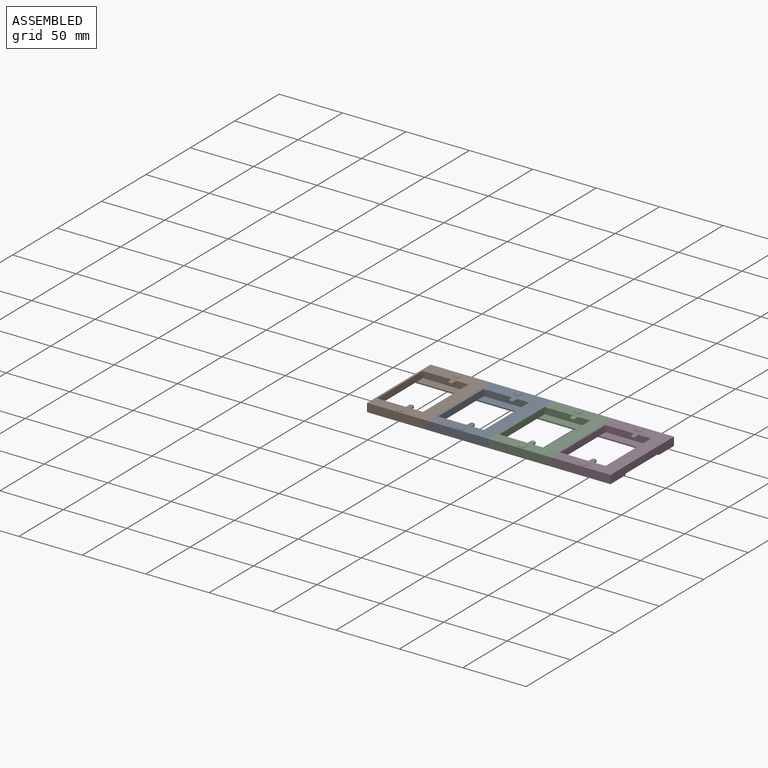
[diagram: assembled view]
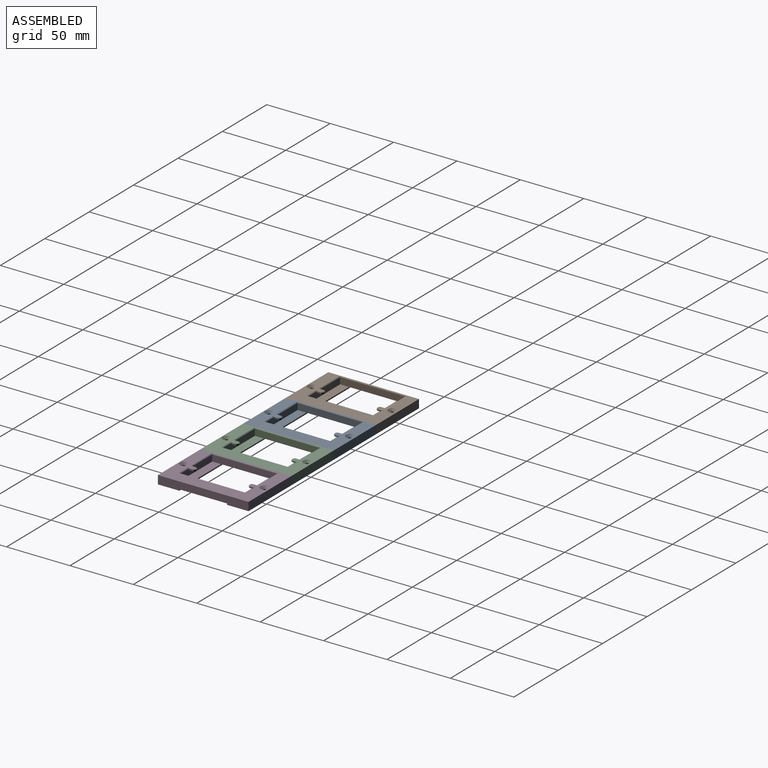
[diagram: assembled view, second angle]
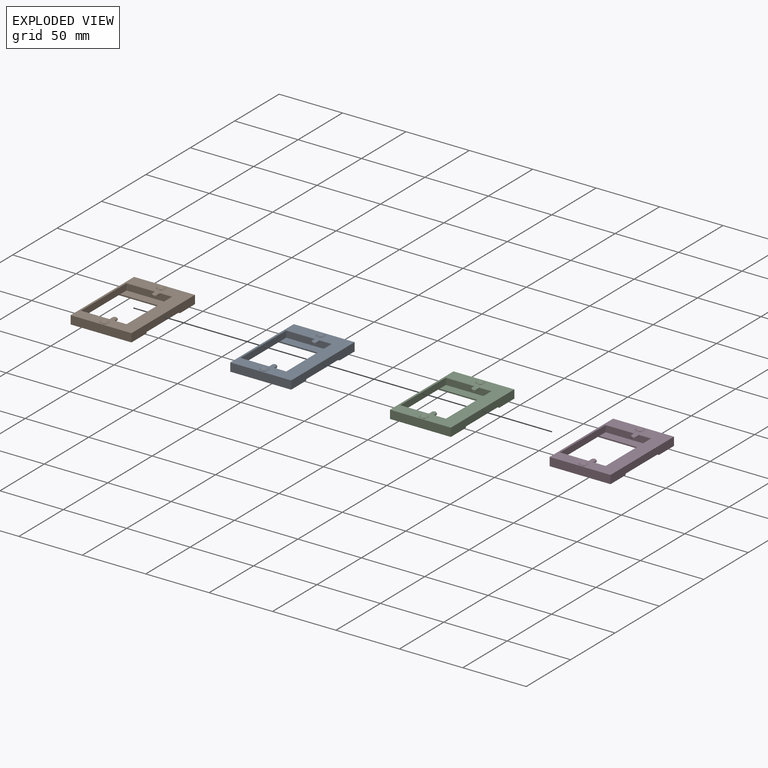
[diagram: exploded view]
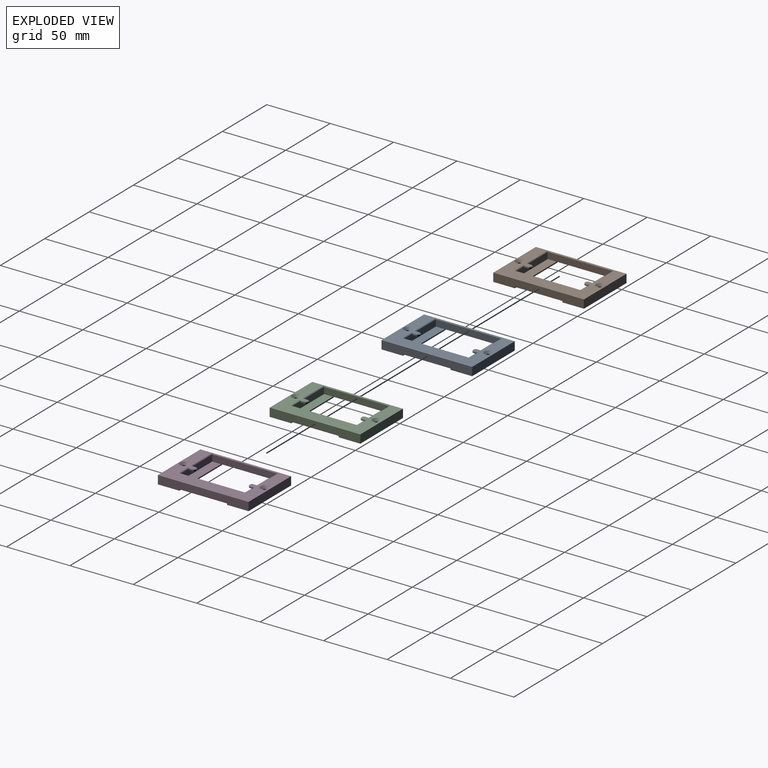
[diagram: exploded view, second angle]
ASSEMBLY  parts=4 mates=3
PART A: 46 faces, bbox 48x71.5x6.6 mm
  f0: plane 71.5x48mm, normal (0,0,1), area 1446.6mm2, adj f2,f3,f28,f29,f30,f31,f32,f33
  f1: plane 48x17mm, normal (0,0,-1), area 808mm2, adj f2,f3,f7,f40,f44
  f2: plane 71.5x6.6mm, normal (-1,0,0), area 434.4mm2, adj f0,f1,f4,f5,f6,f7,f40,f41
  f3: plane 71.5x6.6mm, normal (1,0,0), area 434.4mm2, adj f0,f1,f4,f6,f7,f8,f40,f41
  f4: plane 48x17mm, normal (0,0,-1), area 808mm2, adj f2,f3,f6,f41,f42
  f5: plane 37.5x1mm, normal (0,0,-1), area 37.5mm2, adj f2,f6,f7,f11
  f6: plane 48x1mm, normal (0,-1,0), area 48mm2, adj f2,f3,f4,f5,f8,f26
  f7: plane 48x1mm, normal (0,1,0), area 48mm2, adj f1,f2,f3,f5,f8,f27
  f8: plane 37.5x1mm, normal (0,0,-1), area 37.5mm2, adj f3,f6,f7,f22
  f9: plane 46x5.1mm, normal (0,1,0), area 221.2mm2, adj f10,f11,f17,f18,f20,f21,f22,f23
  f10: plane 51.5x0.2mm, normal (-1,0,0), area 10.3mm2, adj f9,f12,f25,f32
  f11: plane 51.5x5.1mm, normal (1,0,0), area 262.6mm2, adj f5,f9,f12,f26,f27,f35
  f12: plane 46x5.1mm, normal (0,-1,0), area 221.2mm2, adj f10,f11,f13,f15,f16,f21,f22,f24
  f13: plane 3x0.2mm, normal (-1,0,0), area 0.6mm2, adj f12,f14,f24,f31
  f14: cylinder r=2mm len=4mm, axis (0,0,1), area 5.3mm2, adj f13,f15,f16,f24,f29
  f15: plane 3x1mm, normal (1,0,0), area 3mm2, adj f12,f14,f16,f28
  f16: plane 5x3.2mm, normal (0,0,-1), area 15mm2, adj f12,f14,f15,f24
  f17: plane 3x0.2mm, normal (-1,0,0), area 0.6mm2, adj f9,f19,f23,f39
  f18: plane 3x1mm, normal (1,0,0), area 3mm2, adj f9,f19,f20,f36
  f19: cylinder r=2mm len=4mm, axis (0,0,1), area 5.3mm2, adj f17,f18,f20,f23,f38
  f20: plane 5x3.2mm, normal (0,0,-1), area 15mm2, adj f9,f18,f19,f23
  f21: plane 51.5x9.2mm, normal (0,0,-1), area 473.8mm2, adj f9,f12,f22,f25
  f22: plane 51.5x4.1mm, normal (-1,0,0), area 211.1mm2, adj f8,f9,f12,f21,f26,f27
  f23: plane 4.6x0.8mm, normal (-0.71,0,-0.71), area 4.7mm2, adj f9,f17,f19,f20
  f24: plane 4.6x0.8mm, normal (-0.71,0,-0.71), area 4.7mm2, adj f12,f13,f14,f16
  f25: plane 51.5x0.8mm, normal (-0.71,0,-0.71), area 58.3mm2, adj f9,f10,f12,f21
  f26: plane 46x7mm, normal (0,0,1), area 322mm2, adj f6,f11,f12,f22
  f27: plane 46x7mm, normal (0,0,1), area 322mm2, adj f7,f9,f11,f22
  f28: plane 3.5x0.5mm, normal (0.71,0,0.71), area 2.3mm2, adj f0,f15,f29,f30
  f29: cone r=1.5mm half-angle=45deg, axis (0,0,-1), area 3.9mm2, adj f0,f14,f28,f31
  f30: plane 10.5x0.5mm, normal (0,-0.71,0.71), area 7.1mm2, adj f0,f12,f28,f32
  f31: plane 3.5x0.5mm, normal (-0.71,0,0.71), area 2.3mm2, adj f0,f13,f29,f33
  f32: plane 52.5x0.5mm, normal (-0.71,0,0.71), area 36.8mm2, adj f0,f10,f30,f34
  f33: plane 23.5x0.5mm, normal (0,-0.71,0.71), area 16.3mm2, adj f0,f12,f31,f35
  f34: plane 10.5x0.5mm, normal (0,0.71,0.71), area 7.1mm2, adj f0,f9,f32,f36
  f35: plane 52.5x0.5mm, normal (0.71,0,0.71), area 36.8mm2, adj f0,f11,f33,f37
  f36: plane 3.5x0.5mm, normal (0.71,0,0.71), area 2.3mm2, adj f0,f18,f34,f38
  f37: plane 23.5x0.5mm, normal (0,0.71,0.71), area 16.3mm2, adj f0,f9,f35,f39
  f38: cone r=2mm half-angle=45deg, axis (0,0,-1), area 3.9mm2, adj f0,f19,f36,f39
  f39: plane 3.5x0.5mm, normal (-0.71,0,0.71), area 2.3mm2, adj f0,f17,f37,f38
  f40: plane 48x6.6mm, normal (0,-1,0), area 316.8mm2, adj f0,f1,f2,f3
  f41: plane 48x6.6mm, normal (0,1,0), area 316.8mm2, adj f0,f2,f3,f4
  f42: cylinder r=1.6mm len=4.84mm, axis (0,0,1), area 48.7mm2, adj f4,f43
  f43: cone r=1.6mm half-angle=45deg, axis (0,0,1), area 38.8mm2, adj f0,f42
  f44: cylinder r=1.6mm len=4.84mm, axis (0,0,1), area 48.7mm2, adj f1,f45
  f45: cone r=1.6mm half-angle=45deg, axis (0,0,1), area 38.8mm2, adj f0,f44
PART B: same geometry as A
PART C: same geometry as A
PART D: same geometry as A
PLACE A t=(-3.91,14.8,-18.16)mm
PLACE B t=(-51.91,14.8,-18.16)mm
PLACE C t=(44.09,14.8,-18.16)mm
PLACE D t=(92.09,14.8,-18.16)mm
MATE fastened B.f3 <-> A.f2  axis (1,0,0) through (-22.91,14.8,-16.42)mm
MATE fastened C.f3 <-> D.f2  axis (1,0,0) through (73.09,14.8,-16.42)mm
MATE fastened C.f2 <-> A.f3  axis (-1,0,0) through (25.09,14.8,-16.42)mm
